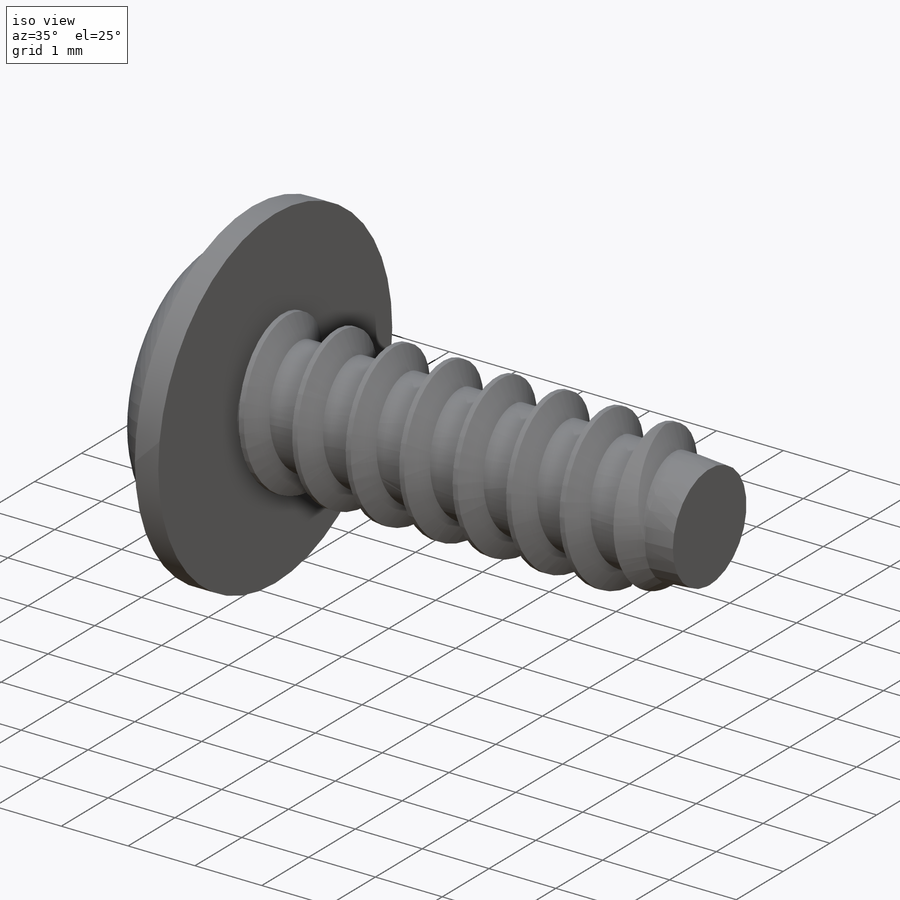
[diagram: iso view]
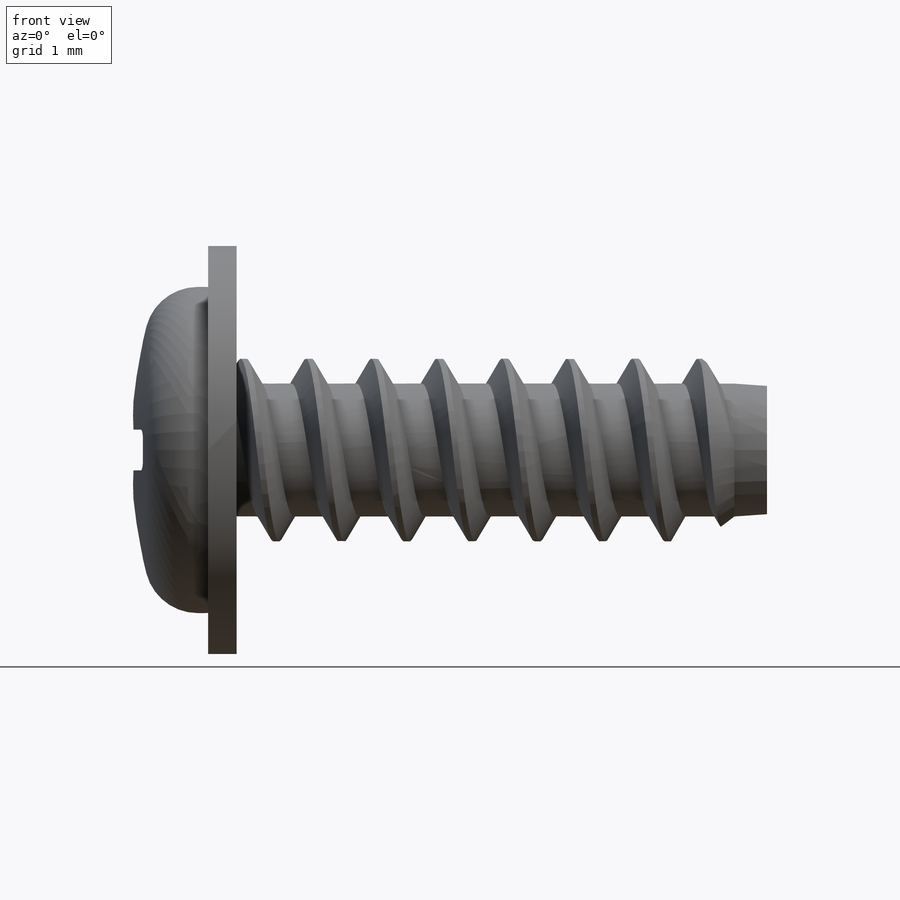
[diagram: front view]
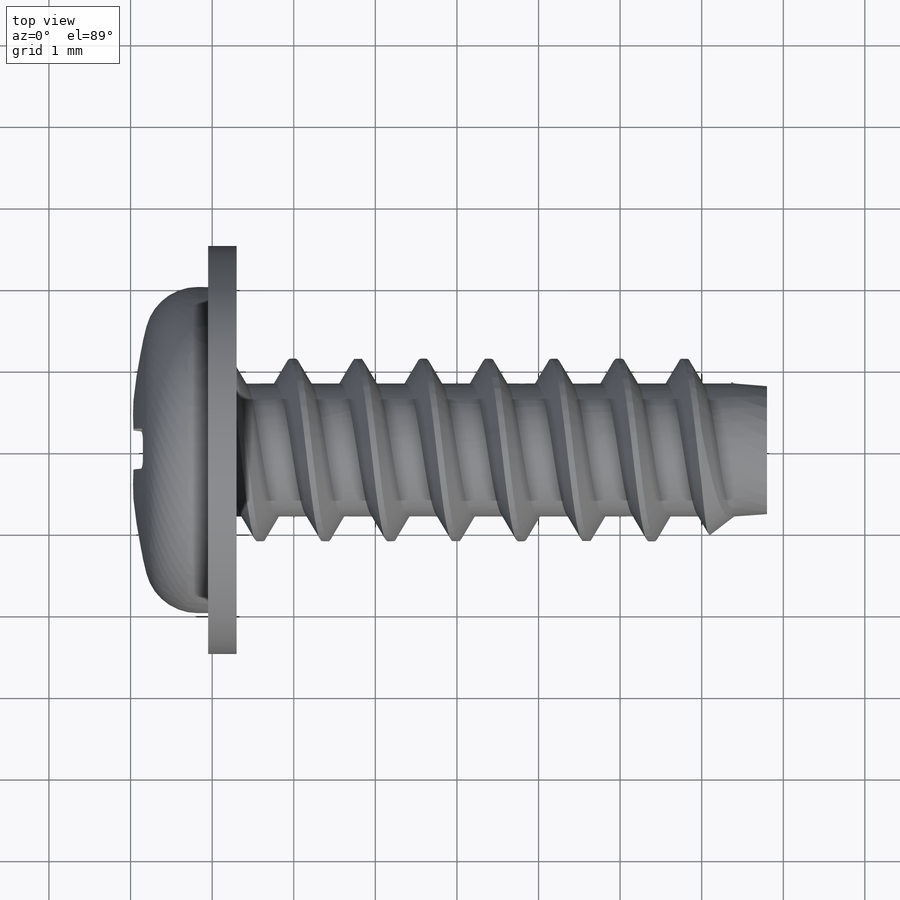
[diagram: top view]
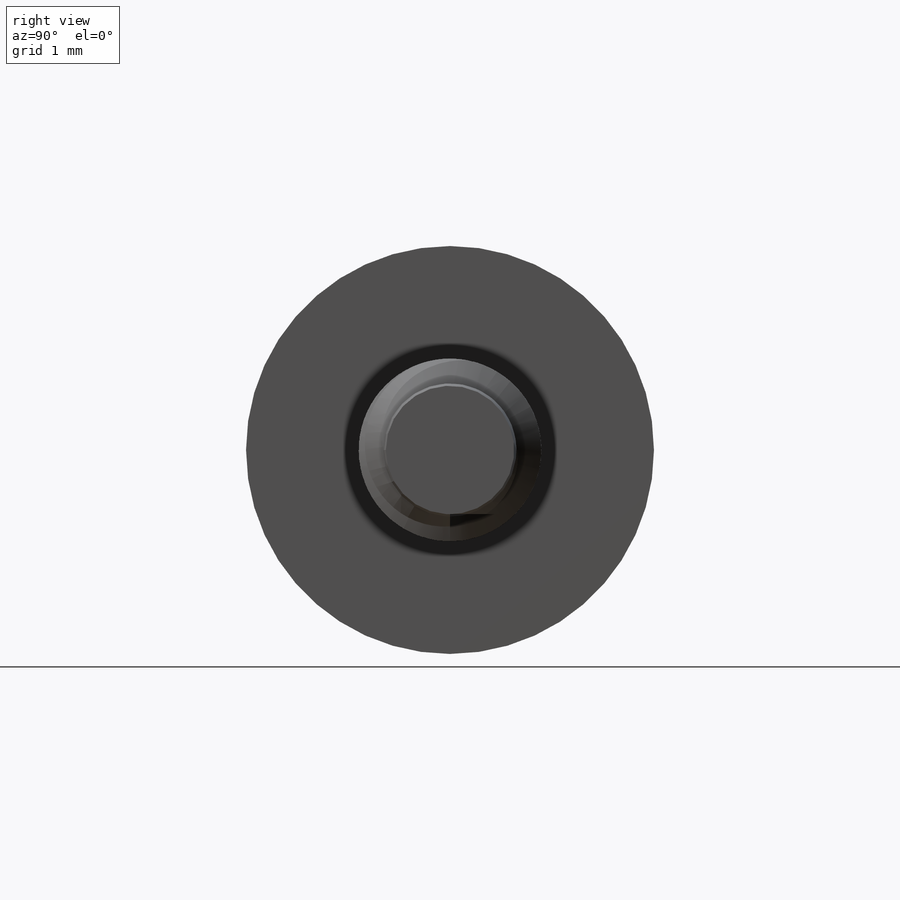
[diagram: right view]
SOLIDWORKS PART (.sldprt)
format: sldprt  version: not decoded by parser v0  size: 812,544 bytes
history: native  units: mm
features: sketch x8, plane x4, chamfer x2, extrude x2, material x1, revolve x1, cut_extrude x1, fillet x1, pattern_circular x1, sweep x1, helix x1, thread x1, cut_revolve x1 (+8 scaffold rows collapsed)
feature tree (33):
  scaffold x8  (default folders/planes/origin — collapsed)
  material  "Acier inoxydable chromé"
  plane  "Plan1"
  plane  "Plan2"
  plane  "Plan3"
  sketch  "Esquisse1"  dims[c1.D3=6.0mm c1.D4=0.65mm c1.D2=0.5mm c1.D5=0.45mm c1.K=1.3mm c2.D2=14.0mm c2.D5=14.0mm c2.A=4.0mm c2.U=0.35mm c2.F=5.0mm]
  revolve  "Base-Révolution"  A=4mm F=5mm  [1 undecoded]
  sketch  "Esquisse2"  dims[c1.D1=0.1625mm c1.D2=~523.598776mm c1.D3=~1.333333mm c1.D4=3.0mm c1.D5=~1396.263402mm c2.D2=~1396.263402mm c2.D5=~523.598776mm]
  cut_extrude  "Enlèv. mat.-Extru.1"  Depth=0.5mm E=0.5mm
  fillet  "Congé1"  Radius=0.13mm
  pattern_circular  "Répétition circulaire1"  Count=2  [1 undecoded]
  chamfer  "Chanfrein2"  Distance=0.35mm
  plane  "Plan4"
  extrude  "Boss.-Extru.3"  [1 undecoded]
  sketch  "Esquisse11"  dims[D1=~7.211103mm]
  sweep  "Boss.-Balayage4"
  sketch  "Esquisse7"
  extrude  "Boss.-Extru.2"  [1 undecoded]
  sketch  "Esquisse6"  dims[c1.D1=~5.656854mm c2.D1=~1203.622493mm c2.D2=~1224.281919mm c2.D3=~0.07625mm c2.D4=~3.887481mm c2.Hf=0.305mm c2.i=0.1mm]
  helix  "Hélice1"  [1 undecoded]
  sketch  "Esquisse8"  dims[L=6.5mm P=0.8mm D5=8.125 D7=0.0mm]
  thread  "Représentation de filetage1"  [2 undecoded]
  cut_revolve  "Enlèvement de matière-Révolution2"  [1 undecoded]
  sketch  "Esquisse9"  dims[c1.m2/2=0.8mm c1.D1=~69.81317mm c1.D2=4.0mm c1.D3=15.4mm c1.D4=2.0mm c2.D3=15.0mm c3.D3=2.24mm c3.D2=1.63mm c3.D1=~6283.185307mm]
  chamfer  "Enlèv. mat.-Extru.3"  [1 undecoded]
  sketch  "Esquisse10"  dims[c1.D1=~7.211103mm c1.D2=1.125mm c2.D2=1.63mm]
decode coverage: 12 of 20 modeling features carry decoded parameters
note: ~ marks probable driven/reference dimensions
note: 9 parameter values undecoded
summary: no parameter record found for 7 features
note: suppression state not decoded; provenance and decode notes live in map.json
